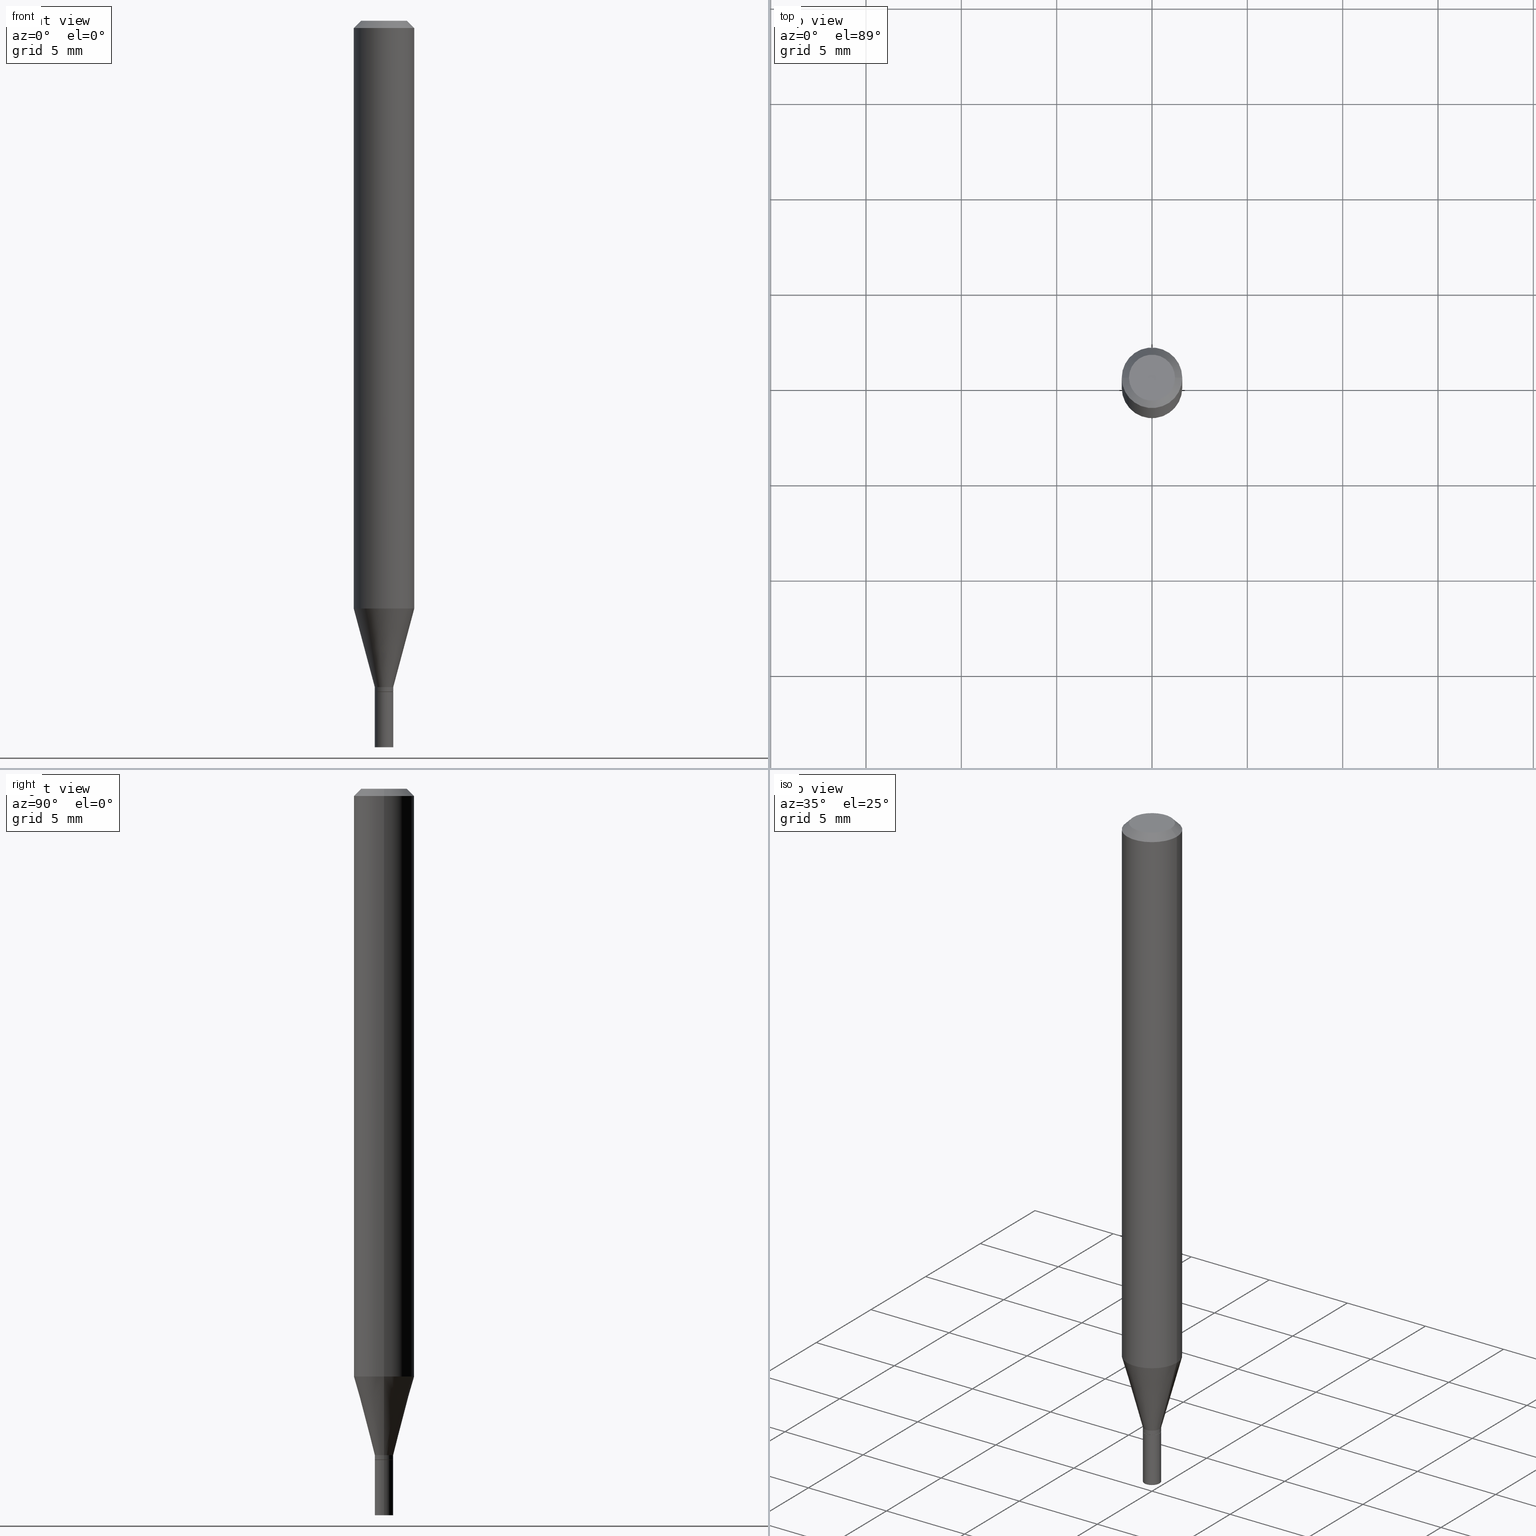
[diagram: canonical four-view strip — front | top / right | iso, engineering-drawing reading convention]
A machine part, canonical four-view strip (front | top / right | iso — engineering-drawing reading convention). The complete STEP part file that produces these views, byte-faithful:
ISO-10303-21;
HEADER;
FILE_DESCRIPTION (( 'STEP AP203' ),
    '1' );
FILE_NAME ('00844.STEP',
    '2024-03-19T22:43:00',
    ( '' ),
    ( '' ),
    'SwSTEP 2.0',
    'SolidWorks 2023',
    '' );
FILE_SCHEMA (( 'CONFIG_CONTROL_DESIGN' ));
ENDSEC;

DATA;
#1 = PERSON_AND_ORGANIZATION ( #120, #69 ) ;
#2 = EDGE_CURVE ( 'NONE', #32, #14, #230, .T. ) ;
#3 = VECTOR ( 'NONE', #204, 39.37007874015748854 ) ;
#4 =( GEOMETRIC_REPRESENTATION_CONTEXT ( 3 ) GLOBAL_UNCERTAINTY_ASSIGNED_CONTEXT ( ( #324 ) ) GLOBAL_UNIT_ASSIGNED_CONTEXT ( ( #253, #68, #297 ) ) REPRESENTATION_CONTEXT ( 'NONE', 'WORKASPACE' ) );
#5 = CIRCLE ( 'NONE', #436, 0.01849999999999999908 ) ;
#6 = DIRECTION ( 'NONE',  ( -2.445468806185136597E-29, 3.491481338843145583E-15, 1.000000000000000000 ) ) ;
#7 = CARTESIAN_POINT ( 'NONE',  ( 0.06250000000000000000, -4.364351673553916694E-16, 3.047610484872459871E-30 ) ) ;
#8 = CIRCLE ( 'NONE', #28, 0.01899999999999999953 ) ;
#9 = DIRECTION ( 'NONE',  ( -2.445468806185136597E-29, 3.491481338843145583E-15, 1.000000000000000000 ) ) ;
#10 = DIMENSIONAL_EXPONENTS ( 1.000000000000000000, 0.000000000000000000, 0.000000000000000000, 0.000000000000000000, 0.000000000000000000, 0.000000000000000000, 0.000000000000000000 ) ;
#11 = DIRECTION ( 'NONE',  ( -2.445468806185136597E-29, 3.491481338843145583E-15, 1.000000000000000000 ) ) ;
#12 = FACE_OUTER_BOUND ( 'NONE', #197, .T. ) ;
#13 = PERSON_AND_ORGANIZATION_ROLE ( 'design_owner' ) ;
#14 = VERTEX_POINT ( 'NONE', #415 ) ;
#15 = EDGE_CURVE ( 'NONE', #52, #159, #207, .T. ) ;
#16 = DIRECTION ( 'NONE',  ( -2.445468806185136877E-29, 3.491481338843145188E-15, 1.000000000000000000 ) ) ;
#17 = ORIENTED_EDGE ( 'NONE', *, *, #279, .F. ) ;
#18 = CARTESIAN_POINT ( 'NONE',  ( 0.01900000000000019382, -4.936954613124209308E-15, -1.376000000000000112 ) ) ;
#19 = AXIS2_PLACEMENT_3D ( 'NONE', #163, #458, #326 ) ;
#20 = ORIENTED_EDGE ( 'NONE', *, *, #131, .F. ) ;
#21 = FACE_OUTER_BOUND ( 'NONE', #429, .T. ) ;
#22 = ORIENTED_EDGE ( 'NONE', *, *, #279, .T. ) ;
#23 = CARTESIAN_POINT ( 'NONE',  ( 0.000000000000000000, 0.000000000000000000, 0.000000000000000000 ) ) ;
#24 = ORIENTED_EDGE ( 'NONE', *, *, #303, .T. ) ;
#25 = CARTESIAN_POINT ( 'NONE',  ( 0.01899999999999992320, -4.970123685843217876E-15, -1.385500000000000398 ) ) ;
#26 = DIRECTION ( 'NONE',  ( 1.000000000000000000, -6.982962677686281699E-15, 0.000000000000000000 ) ) ;
#27 = APPROVAL ( #223, 'UNSPECIFIED' ) ;
#28 = AXIS2_PLACEMENT_3D ( 'NONE', #121, #418, #26 ) ;
#29 = VECTOR ( 'NONE', #272, 39.37007874015748143 ) ;
#30 = VERTEX_POINT ( 'NONE', #452 ) ;
#31 = DIRECTION ( 'NONE',  ( -2.445468806185136597E-29, 3.491481338843145583E-15, 1.000000000000000000 ) ) ;
#32 = VERTEX_POINT ( 'NONE', #166 ) ;
#33 = EDGE_CURVE ( 'NONE', #14, #32, #8, .T. ) ;
#34 = EDGE_LOOP ( 'NONE', ( #167, #164, #383, #312 ) ) ;
#35 = DIRECTION ( 'NONE',  ( -2.445468806185136877E-29, 3.491481338843145188E-15, 1.000000000000000000 ) ) ;
#36 = DIRECTION ( 'NONE',  ( 1.000000000000000000, -6.982962677686265922E-15, 4.876176775795935793E-29 ) ) ;
#37 = VECTOR ( 'NONE', #401, 39.37007874015748143 ) ;
#38 = ORIENTED_EDGE ( 'NONE', *, *, #251, .F. ) ;
#39 = CYLINDRICAL_SURFACE ( 'NONE', #306, 0.01899999999999999953 ) ;
#40 = ADVANCED_FACE ( 'NONE', ( #323 ), #128, .T. ) ;
#41 = DIRECTION ( 'NONE',  ( 1.000000000000000000, -6.982962677686265922E-15, 4.876176775795935793E-29 ) ) ;
#42 = AXIS2_PLACEMENT_3D ( 'NONE', #461, #85, #55 ) ;
#43 = AXIS2_PLACEMENT_3D ( 'NONE', #336, #357, #71 ) ;
#44 = DIRECTION ( 'NONE',  ( 2.445468806185136597E-29, -3.491481338843145583E-15, -1.000000000000000000 ) ) ;
#45 = DIRECTION ( 'NONE',  ( 1.000000000000000000, -6.982962677686262766E-15, 0.000000000000000000 ) ) ;
#46 = EDGE_LOOP ( 'NONE', ( #433, #379 ) ) ;
#47 = DIRECTION ( 'NONE',  ( 1.000000000000000000, -6.982962677686265922E-15, 4.876176775795935793E-29 ) ) ;
#48 = DIRECTION ( 'NONE',  ( 0.7071067811865453523, -7.319954787623248157E-15, -0.7071067811865496822 ) ) ;
#49 = CARTESIAN_POINT ( 'NONE',  ( 0.01849999999999999908, -4.968377945173796372E-15, -1.386000000000000121 ) ) ;
#50 = EDGE_LOOP ( 'NONE', ( #400, #271 ) ) ;
#51 = LINE ( 'NONE', #7, #37 ) ;
#52 = VERTEX_POINT ( 'NONE', #18 ) ;
#53 = ADVANCED_FACE ( 'NONE', ( #343 ), #127, .T. ) ;
#54 = COORDINATED_UNIVERSAL_TIME_OFFSET ( 5, 0, .BEHIND. ) ;
#55 = DIRECTION ( 'NONE',  ( 1.000000000000000000, -6.982962677686254089E-15, 0.000000000000000000 ) ) ;
#56 = CC_DESIGN_DATE_AND_TIME_ASSIGNMENT ( #72, #220, ( #340 ) ) ;
#57 = DIRECTION ( 'NONE',  ( -2.445468806185136597E-29, 3.491481338843145583E-15, 1.000000000000000000 ) ) ;
#58 = ORIENTED_EDGE ( 'NONE', *, *, #385, .F. ) ;
#59 = APPROVAL_PERSON_ORGANIZATION ( #396, #27, #115 ) ;
#60 = EDGE_LOOP ( 'NONE', ( #58, #289, #22, #460 ) ) ;
#61 = CARTESIAN_POINT ( 'NONE',  ( 0.06250000000000000000, -4.888073874380388472E-16, -0.01499999999999999944 ) ) ;
#62 = ORIENTED_EDGE ( 'NONE', *, *, #215, .F. ) ;
#63 = CARTESIAN_POINT ( 'NONE',  ( 0.01899999999999999953, -4.971869426512640168E-15, -1.386000000000000121 ) ) ;
#64 = CYLINDRICAL_SURFACE ( 'NONE', #347, 0.06250000000000000000 ) ;
#65 = LOCAL_TIME ( 18, 43, 0.000000000000000000, #233 ) ;
#66 = LINE ( 'NONE', #181, #99 ) ;
#67 = EDGE_LOOP ( 'NONE', ( #338, #180 ) ) ;
#68 =( NAMED_UNIT ( * ) PLANE_ANGLE_UNIT ( ) SI_UNIT ( $, .RADIAN. ) );
#69 = ORGANIZATION ( 'UNSPECIFIED', 'UNSPECIFIED', '' ) ;
#70 = FACE_OUTER_BOUND ( 'NONE', #100, .T. ) ;
#71 = DIRECTION ( 'NONE',  ( -1.000000000000000000, 6.982962677686266711E-15, 0.000000000000000000 ) ) ;
#72 = DATE_AND_TIME ( #102, #359 ) ;
#73 = ADVANCED_FACE ( 'NONE', ( #243 ), #64, .T. ) ;
#74 = FACE_OUTER_BOUND ( 'NONE', #446, .T. ) ;
#75 = EDGE_CURVE ( 'NONE', #178, #86, #274, .T. ) ;
#76 = AXIS2_PLACEMENT_3D ( 'NONE', #282, #236, #370 ) ;
#77 = LOCAL_TIME ( 18, 43, 0.000000000000000000, #354 ) ;
#78 = PLANE ( 'NONE',  #300 ) ;
#79 = CARTESIAN_POINT ( 'NONE',  ( -0.01899999999999999953, -4.903204452156240515E-15, -1.386000000000000121 ) ) ;
#80 = EDGE_CURVE ( 'NONE', #339, #409, #199, .T. ) ;
#81 = ORIENTED_EDGE ( 'NONE', *, *, #256, .F. ) ;
#82 = DIRECTION ( 'NONE',  ( 1.000000000000000000, -6.982962677686261977E-15, 0.000000000000000000 ) ) ;
#83 = DIRECTION ( 'NONE',  ( -2.445468806185136597E-29, 3.491481338843145583E-15, 1.000000000000000000 ) ) ;
#84 = ORIENTED_EDGE ( 'NONE', *, *, #375, .T. ) ;
#85 = DIRECTION ( 'NONE',  ( -2.445468806185136597E-29, 3.491481338843145583E-15, 1.000000000000000000 ) ) ;
#86 = VERTEX_POINT ( 'NONE', #95 ) ;
#87 = CARTESIAN_POINT ( 'NONE',  ( -2.284261553135908873E-45, 3.261320105837856889E-31, 9.340792028745169707E-17 ) ) ;
#88 = ORIENTED_EDGE ( 'NONE', *, *, #438, .T. ) ;
#89 = DIRECTION ( 'NONE',  ( 1.000000000000000000, -6.982962677686281699E-15, 0.000000000000000000 ) ) ;
#90 = CARTESIAN_POINT ( 'NONE',  ( 0.01900000000000019382, -4.936954613124209308E-15, -1.376000000000000112 ) ) ;
#91 = AXIS2_PLACEMENT_3D ( 'NONE', #154, #307, #364 ) ;
#92 = ORIENTED_EDGE ( 'NONE', *, *, #192, .T. ) ;
#93 = CARTESIAN_POINT ( 'NONE',  ( 1.326762908760729501E-16, 0.01899999999999515965, -1.386000000000000121 ) ) ;
#94 = MANIFOLD_SOLID_BREP ( 'Body-Move/Copy2[2]', #419 ) ;
#95 = CARTESIAN_POINT ( 'NONE',  ( -0.01899999999999992320, -4.702444275172761294E-15, -1.385500000000000398 ) ) ;
#96 = VERTEX_POINT ( 'NONE', #349 ) ;
#97 = EDGE_CURVE ( 'NONE', #409, #130, #124, .T. ) ;
#98 = VECTOR ( 'NONE', #168, 39.37007874015748854 ) ;
#99 = VECTOR ( 'NONE', #177, 39.37007874015748143 ) ;
#100 = EDGE_LOOP ( 'NONE', ( #424, #422, #205, #126 ) ) ;
#101 = CARTESIAN_POINT ( 'NONE',  ( 3.389419765372599969E-29, -4.839193135636600375E-15, -1.386000000000000121 ) ) ;
#102 = CALENDAR_DATE ( 2024, 19, 3 ) ;
#103 = EDGE_CURVE ( 'NONE', #339, #252, #255, .T. ) ;
#104 = PERSON_AND_ORGANIZATION_ROLE ( 'creator' ) ;
#105 = AXIS2_PLACEMENT_3D ( 'NONE', #149, #305, #442 ) ;
#106 = DIRECTION ( 'NONE',  ( -2.438088387897960049E-29, 3.491481338843145188E-15, 1.000000000000000000 ) ) ;
#107 = EDGE_CURVE ( 'NONE', #209, #352, #392, .T. ) ;
#108 = FACE_OUTER_BOUND ( 'NONE', #34, .T. ) ;
#109 = CARTESIAN_POINT ( 'NONE',  ( -0.06250000000000000000, 4.440892098500626162E-16, -3.074334431409316114E-30 ) ) ;
#110 = AXIS2_PLACEMENT_3D ( 'NONE', #317, #450, #283 ) ;
#111 = CC_DESIGN_APPROVAL ( #221, ( #398 ) ) ;
#112 = PERSON_AND_ORGANIZATION_ROLE ( 'classification_officer' ) ;
#113 = ORIENTED_EDGE ( 'NONE', *, *, #371, .T. ) ;
#114 = CARTESIAN_POINT ( 'NONE',  ( 3.389419765372599969E-29, -4.839193135636600375E-15, -1.386000000000000121 ) ) ;
#115 = APPROVAL_ROLE ( '' ) ;
#116 = AXIS2_PLACEMENT_3D ( 'NONE', #93, #414, #206 ) ;
#117 = PLANE ( 'NONE',  #116 ) ;
#118 = EDGE_CURVE ( 'NONE', #352, #209, #212, .T. ) ;
#119 = CARTESIAN_POINT ( 'NONE',  ( 0.000000000000000000, 0.000000000000000000, 0.000000000000000000 ) ) ;
#120 = PERSON ( 'UNSPECIFIED', 'UNSPECIFIED', 'UNSPECIFIED', ('UNSPECIFIED'), ('UNSPECIFIED'), ('UNSPECIFIED') ) ;
#121 = CARTESIAN_POINT ( 'NONE',  ( 3.668203209277704895E-29, -5.237222008264718177E-15, -1.500000000000000222 ) ) ;
#122 = ORIENTED_EDGE ( 'NONE', *, *, #444, .T. ) ;
#123 = DIRECTION ( 'NONE',  ( -2.445468806185136597E-29, 3.491481338843145583E-15, 1.000000000000000000 ) ) ;
#124 = CIRCLE ( 'NONE', #151, 0.06250000000000000000 ) ;
#125 = VECTOR ( 'NONE', #229, 39.37007874015748143 ) ;
#126 = ORIENTED_EDGE ( 'NONE', *, *, #303, .F. ) ;
#127 = CYLINDRICAL_SURFACE ( 'NONE', #455, 0.01899999999999999953 ) ;
#128 = CYLINDRICAL_SURFACE ( 'NONE', #299, 0.01900000000000005851 ) ;
#129 = DESIGN_CONTEXT ( 'detailed design', #225, 'design' ) ;
#130 = VERTEX_POINT ( 'NONE', #61 ) ;
#131 = EDGE_CURVE ( 'NONE', #30, #159, #294, .T. ) ;
#132 = DIRECTION ( 'NONE',  ( -2.445468806185136597E-29, 3.491481338843145583E-15, 1.000000000000000000 ) ) ;
#133 = PRODUCT_RELATED_PRODUCT_CATEGORY ( 'detail', '', ( #363 ) ) ;
#134 = DIRECTION ( 'NONE',  ( 1.000000000000000000, -6.982962677686266711E-15, 4.876176775795935793E-29 ) ) ;
#135 = VECTOR ( 'NONE', #35, 39.37007874015748143 ) ;
#136 = AXIS2_PLACEMENT_3D ( 'NONE', #355, #106, #36 ) ;
#137 = ORIENTED_EDGE ( 'NONE', *, *, #187, .T. ) ;
#138 = LENGTH_MEASURE_WITH_UNIT ( LENGTH_MEASURE( 0.02539999999999999897 ), #179 );
#139 = APPROVAL_STATUS ( 'not_yet_approved' ) ;
#140 = ADVANCED_FACE ( 'NONE', ( #21 ), #161, .T. ) ;
#141 = DIRECTION ( 'NONE',  ( 1.000000000000000000, -6.982962677686258822E-15, 0.000000000000000000 ) ) ;
#142 = PERSON_AND_ORGANIZATION ( #120, #69 ) ;
#143 = APPLICATION_PROTOCOL_DEFINITION ( 'international standard', 'config_control_design', 1994, #176 ) ;
#144 = AXIS2_PLACEMENT_3D ( 'NONE', #87, #31, #316 ) ;
#145 = AXIS2_PLACEMENT_3D ( 'NONE', #114, #407, #231 ) ;
#146 = PRODUCT_DEFINITION_SHAPE ( 'NONE', 'NONE',  #340 ) ;
#147 = DIRECTION ( 'NONE',  ( 1.000000000000000000, -6.982962677686265133E-15, 4.876176775795935232E-29 ) ) ;
#148 = CARTESIAN_POINT ( 'NONE',  ( 0.000000000000000000, 0.000000000000000000, 0.000000000000000000 ) ) ;
#149 = CARTESIAN_POINT ( 'NONE',  ( 3.389419765372599969E-29, -4.839193135636600375E-15, -1.386000000000000121 ) ) ;
#150 = MECHANICAL_CONTEXT ( 'NONE', #176, 'mechanical' ) ;
#151 = AXIS2_PLACEMENT_3D ( 'NONE', #285, #132, #319 ) ;
#152 = AXIS2_PLACEMENT_3D ( 'NONE', #337, #44, #402 ) ;
#153 = APPROVAL_DATE_TIME ( #445, #27 ) ;
#154 = CARTESIAN_POINT ( 'NONE',  ( 3.668203209277705088E-31, -5.237222008264718399E-17, -0.01499999999999999944 ) ) ;
#155 = CARTESIAN_POINT ( 'NONE',  ( -0.04749999999999999362, 3.578768372314211985E-16, 9.340792028744928118E-17 ) ) ;
#156 = SECURITY_CLASSIFICATION_LEVEL ( 'unclassified' ) ;
#157 = ORIENTED_EDGE ( 'NONE', *, *, #187, .F. ) ;
#158 = CARTESIAN_POINT ( 'NONE',  ( 3.388197030969507728E-29, -4.837447394967178871E-15, -1.385500000000000398 ) ) ;
#159 = VERTEX_POINT ( 'NONE', #235 ) ;
#160 = ADVANCED_FACE ( 'NONE', ( #423 ), #417, .F. ) ;
#161 = CONICAL_SURFACE ( 'NONE', #42, 0.01849999999999999908, 0.7853981633974718157 ) ;
#162 = ADVANCED_FACE ( 'NONE', ( #449 ), #117, .F. ) ;
#163 = CARTESIAN_POINT ( 'NONE',  ( 3.389419765372599969E-29, -4.839193135636600375E-15, -1.386000000000000121 ) ) ;
#164 = ORIENTED_EDGE ( 'NONE', *, *, #103, .F. ) ;
#165 = DIRECTION ( 'NONE',  ( 1.000000000000000000, -6.982962677686261977E-15, 0.000000000000000000 ) ) ;
#166 = CARTESIAN_POINT ( 'NONE',  ( -0.01899999999999999953, -4.903204452156240515E-15, -1.500000000000000222 ) ) ;
#167 = ORIENTED_EDGE ( 'NONE', *, *, #403, .F. ) ;
#168 = DIRECTION ( 'NONE',  ( -0.2588190451025212391, 5.211531920934549464E-15, 0.9659258262890679791 ) ) ;
#169 = ORIENTED_EDGE ( 'NONE', *, *, #330, .T. ) ;
#170 = CARTESIAN_POINT ( 'NONE',  ( 0.01900000000000005851, -1.326762908760394481E-16, 9.264735874012305402E-31 ) ) ;
#171 = DIRECTION ( 'NONE',  ( 1.000000000000000000, -6.982962677686265133E-15, 4.876176775795935232E-29 ) ) ;
#172 = CIRCLE ( 'NONE', #335, 0.06250000000000000000 ) ;
#173 = CARTESIAN_POINT ( 'NONE',  ( 3.389419765372599969E-29, -4.839193135636600375E-15, -1.386000000000000121 ) ) ;
#174 = CC_DESIGN_PERSON_AND_ORGANIZATION_ASSIGNMENT ( #190, #195, ( #193 ) ) ;
#175 = EDGE_LOOP ( 'NONE', ( #234, #84, #17, #38 ) ) ;
#176 = APPLICATION_CONTEXT ( 'configuration controlled 3d designs of mechanical parts and assemblies' ) ;
#177 = DIRECTION ( 'NONE',  ( -0.7071067811865642261, 7.493145998870414114E-15, 0.7071067811865309194 ) ) ;
#178 = VERTEX_POINT ( 'NONE', #25 ) ;
#179 =( LENGTH_UNIT ( ) NAMED_UNIT ( * ) SI_UNIT ( $, .METRE. ) );
#180 = ORIENTED_EDGE ( 'NONE', *, *, #2, .F. ) ;
#181 = CARTESIAN_POINT ( 'NONE',  ( -0.01849999999999999908, -4.707742729520982118E-15, -1.386000000000000121 ) ) ;
#182 = DIRECTION ( 'NONE',  ( 1.000000000000000000, -6.982962677686254089E-15, 0.000000000000000000 ) ) ;
#183 = LINE ( 'NONE', #395, #430 ) ;
#184 = ADVANCED_FACE ( 'NONE', ( #381 ), #185, .T. ) ;
#185 = CONICAL_SURFACE ( 'NONE', #313, 0.01900000000000019382, 0.2617993877991499629 ) ;
#186 = CC_DESIGN_APPROVAL ( #27, ( #340 ) ) ;
#187 = EDGE_CURVE ( 'NONE', #244, #30, #451, .T. ) ;
#188 = CARTESIAN_POINT ( 'NONE',  ( 0.000000000000000000, 0.000000000000000000, 0.000000000000000000 ) ) ;
#189 = CYLINDRICAL_SURFACE ( 'NONE', #443, 0.06250000000000000000 ) ;
#190 = PERSON_AND_ORGANIZATION ( #120, #69 ) ;
#191 = CARTESIAN_POINT ( 'NONE',  ( 0.04749999999999999362, -4.035134999187576651E-16, 9.340792028745427319E-17 ) ) ;
#192 = EDGE_CURVE ( 'NONE', #52, #244, #358, .T. ) ;
#193 = PRODUCT_DEFINITION_FORMATION_WITH_SPECIFIED_SOURCE ( 'ANY', '', #363, .NOT_KNOWN. ) ;
#194 = DIRECTION ( 'NONE',  ( 0.000000000000000000, 0.000000000000000000, 1.000000000000000000 ) ) ;
#195 = PERSON_AND_ORGANIZATION_ROLE ( 'design_supplier' ) ;
#196 = CARTESIAN_POINT ( 'NONE',  ( 0.01899999999999999953, -1.326762908760390537E-16, 9.264735874012277376E-31 ) ) ;
#197 = EDGE_LOOP ( 'NONE', ( #292, #382, #122, #346 ) ) ;
#198 = SHAPE_DEFINITION_REPRESENTATION ( #146, #245 ) ;
#199 = LINE ( 'NONE', #290, #201 ) ;
#200 = ORIENTED_EDGE ( 'NONE', *, *, #97, .F. ) ;
#201 = VECTOR ( 'NONE', #210, 39.37007874015748143 ) ;
#202 = CONICAL_SURFACE ( 'NONE', #275, 0.01900000000000019382, 0.2617993877991499629 ) ;
#203 = DIRECTION ( 'NONE',  ( -2.445468806185136597E-29, 3.491481338843145583E-15, 1.000000000000000000 ) ) ;
#204 = DIRECTION ( 'NONE',  ( 0.2588190451025212391, 1.565188264969622362E-15, 0.9659258262890679791 ) ) ;
#205 = ORIENTED_EDGE ( 'NONE', *, *, #107, .F. ) ;
#206 = DIRECTION ( 'NONE',  ( -1.000000000000000000, 6.982962677686265922E-15, -4.876176775795935793E-29 ) ) ;
#207 = LINE ( 'NONE', #90, #3 ) ;
#208 = CARTESIAN_POINT ( 'NONE',  ( 3.364965077310747863E-29, -4.804278322248168726E-15, -1.376000000000000112 ) ) ;
#209 = VERTEX_POINT ( 'NONE', #63 ) ;
#210 = DIRECTION ( 'NONE',  ( -0.7071067811865453523, 2.468850131082234184E-15, -0.7071067811865496822 ) ) ;
#211 = AXIS2_PLACEMENT_3D ( 'NONE', #341, #57, #342 ) ;
#212 = CIRCLE ( 'NONE', #19, 0.01899999999999999953 ) ;
#213 = CIRCLE ( 'NONE', #387, 0.04749999999999999362 ) ;
#214 = PERSON_AND_ORGANIZATION ( #120, #69 ) ;
#215 = EDGE_CURVE ( 'NONE', #178, #52, #344, .T. ) ;
#216 = EDGE_CURVE ( 'NONE', #32, #352, #435, .T. ) ;
#217 = CLOSED_SHELL ( 'NONE', ( #247, #463, #53, #162 ) ) ;
#218 = LOCAL_TIME ( 18, 43, 0.000000000000000000, #54 ) ;
#219 = EDGE_CURVE ( 'NONE', #244, #52, #262, .T. ) ;
#220 = DATE_TIME_ROLE ( 'creation_date' ) ;
#221 = APPROVAL ( #372, 'UNSPECIFIED' ) ;
#222 = CYLINDRICAL_SURFACE ( 'NONE', #411, 0.01900000000000005851 ) ;
#223 = APPROVAL_STATUS ( 'not_yet_approved' ) ;
#224 = CC_DESIGN_APPROVAL ( #441, ( #193 ) ) ;
#225 = APPLICATION_CONTEXT ( 'configuration controlled 3d designs of mechanical parts and assemblies' ) ;
#226 = PERSON_AND_ORGANIZATION ( #120, #69 ) ;
#227 = DIRECTION ( 'NONE',  ( 1.000000000000000000, -6.982962677686267499E-15, 4.884662768193073002E-29 ) ) ;
#228 = DATE_TIME_ROLE ( 'classification_date' ) ;
#229 = DIRECTION ( 'NONE',  ( -2.445468806185136877E-29, 3.491481338843145188E-15, 1.000000000000000000 ) ) ;
#230 = CIRCLE ( 'NONE', #110, 0.01899999999999999953 ) ;
#231 = DIRECTION ( 'NONE',  ( 1.000000000000000000, -6.982962677686254089E-15, 0.000000000000000000 ) ) ;
#232 = CARTESIAN_POINT ( 'NONE',  ( 0.06250000000000000000, -4.811533449433679005E-16, -0.01499999999999999944 ) ) ;
#233 = COORDINATED_UNIVERSAL_TIME_OFFSET ( 5, 0, .BEHIND. ) ;
#234 = ORIENTED_EDGE ( 'NONE', *, *, #325, .T. ) ;
#235 = CARTESIAN_POINT ( 'NONE',  ( 0.06250000000000000000, -4.673891709468070691E-15, -1.213655789870754953 ) ) ;
#236 = DIRECTION ( 'NONE',  ( 2.438088387897960049E-29, -3.491481338843145188E-15, -1.000000000000000000 ) ) ;
#237 = ORIENTED_EDGE ( 'NONE', *, *, #219, .F. ) ;
#238 = ORIENTED_EDGE ( 'NONE', *, *, #2, .T. ) ;
#239 = AXIS2_PLACEMENT_3D ( 'NONE', #250, #390, #434 ) ;
#240 = CARTESIAN_POINT ( 'NONE',  ( 3.388197030969507728E-29, -4.837447394967178871E-15, -1.385500000000000398 ) ) ;
#241 = ORIENTED_EDGE ( 'NONE', *, *, #325, .F. ) ;
#242 = ORIENTED_EDGE ( 'NONE', *, *, #444, .F. ) ;
#243 = FACE_OUTER_BOUND ( 'NONE', #376, .T. ) ;
#244 = VERTEX_POINT ( 'NONE', #393 ) ;
#245 = ADVANCED_BREP_SHAPE_REPRESENTATION ( '00844', ( #405, #94, #348 ), #4 ) ;
#246 = DIRECTION ( 'NONE',  ( -2.445468806185136597E-29, 3.491481338843145583E-15, 1.000000000000000000 ) ) ;
#247 = ADVANCED_FACE ( 'NONE', ( #70 ), #39, .T. ) ;
#248 = CC_DESIGN_PERSON_AND_ORGANIZATION_ASSIGNMENT ( #142, #112, ( #398 ) ) ;
#249 = AXIS2_PLACEMENT_3D ( 'NONE', #240, #412, #322 ) ;
#250 = CARTESIAN_POINT ( 'NONE',  ( 3.364965077310747863E-29, -4.804278322248168726E-15, -1.376000000000000112 ) ) ;
#251 = EDGE_CURVE ( 'NONE', #159, #130, #51, .T. ) ;
#252 = VERTEX_POINT ( 'NONE', #191 ) ;
#253 =( CONVERSION_BASED_UNIT ( 'INCH', #138 ) LENGTH_UNIT ( ) NAMED_UNIT ( #10 ) );
#254 = PERSON_AND_ORGANIZATION ( #120, #69 ) ;
#255 = CIRCLE ( 'NONE', #144, 0.04749999999999999362 ) ;
#256 = EDGE_CURVE ( 'NONE', #96, #284, #295, .T. ) ;
#257 = APPROVAL_DATE_TIME ( #413, #221 ) ;
#258 = CARTESIAN_POINT ( 'NONE',  ( -0.01900000000000005851, 1.350031197944194510E-16, -9.345976671484349768E-31 ) ) ;
#259 = ORIENTED_EDGE ( 'NONE', *, *, #309, .T. ) ;
#260 = DIRECTION ( 'NONE',  ( -2.445468806185136597E-29, 3.491481338843145583E-15, 1.000000000000000000 ) ) ;
#261 = CARTESIAN_POINT ( 'NONE',  ( -0.06250000000000000000, -1.700825171247600434E-15, -0.01499999999999999944 ) ) ;
#262 = CIRCLE ( 'NONE', #239, 0.01900000000000019382 ) ;
#263 = APPROVAL_PERSON_ORGANIZATION ( #281, #221, #276 ) ;
#264 = CARTESIAN_POINT ( 'NONE',  ( 2.967957375574913989E-29, -4.237456542112679022E-15, -1.213655789870754953 ) ) ;
#265 = DIRECTION ( 'NONE',  ( -2.445468806185136597E-29, 3.491481338843145583E-15, 1.000000000000000000 ) ) ;
#266 = FACE_OUTER_BOUND ( 'NONE', #60, .T. ) ;
#267 = ORIENTED_EDGE ( 'NONE', *, *, #15, .T. ) ;
#268 = ADVANCED_FACE ( 'NONE', ( #334 ), #202, .T. ) ;
#269 = CALENDAR_DATE ( 2024, 19, 3 ) ;
#270 = LINE ( 'NONE', #109, #125 ) ;
#271 = ORIENTED_EDGE ( 'NONE', *, *, #118, .T. ) ;
#272 = DIRECTION ( 'NONE',  ( -2.445468806185136877E-29, 3.491481338843145188E-15, 1.000000000000000000 ) ) ;
#273 = ORIENTED_EDGE ( 'NONE', *, *, #215, .T. ) ;
#274 = CIRCLE ( 'NONE', #249, 0.01899999999999992320 ) ;
#275 = AXIS2_PLACEMENT_3D ( 'NONE', #278, #265, #82 ) ;
#276 = APPROVAL_ROLE ( '' ) ;
#277 = CIRCLE ( 'NONE', #353, 0.01899999999999992320 ) ;
#278 = CARTESIAN_POINT ( 'NONE',  ( 3.364965077310747863E-29, -4.804278322248168726E-15, -1.376000000000000112 ) ) ;
#279 = EDGE_CURVE ( 'NONE', #130, #409, #366, .T. ) ;
#280 = ORIENTED_EDGE ( 'NONE', *, *, #75, .F. ) ;
#281 = PERSON_AND_ORGANIZATION ( #120, #69 ) ;
#282 = CARTESIAN_POINT ( 'NONE',  ( 3.316907271900976096E-16, 0.04749999999999999362, -1.191414034513235726E-16 ) ) ;
#283 = DIRECTION ( 'NONE',  ( 1.000000000000000000, -6.982962677686281699E-15, 0.000000000000000000 ) ) ;
#284 = VERTEX_POINT ( 'NONE', #49 ) ;
#285 = CARTESIAN_POINT ( 'NONE',  ( 3.668203209277705088E-31, -5.237222008264718399E-17, -0.01499999999999999944 ) ) ;
#286 = ORIENTED_EDGE ( 'NONE', *, *, #219, .T. ) ;
#287 = CONICAL_SURFACE ( 'NONE', #43, 0.06250000000000000000, 0.7853981633974452814 ) ;
#288 = DIRECTION ( 'NONE',  ( 1.000000000000000000, -6.982962677686261977E-15, 0.000000000000000000 ) ) ;
#289 = ORIENTED_EDGE ( 'NONE', *, *, #403, .T. ) ;
#290 = CARTESIAN_POINT ( 'NONE',  ( -0.06250000000000000000, 3.840629472727444916E-16, -0.01499999999999999944 ) ) ;
#291 = EDGE_LOOP ( 'NONE', ( #92, #137, #241, #380 ) ) ;
#292 = ORIENTED_EDGE ( 'NONE', *, *, #438, .F. ) ;
#293 = ADVANCED_FACE ( 'NONE', ( #12 ), #331, .T. ) ;
#294 = CIRCLE ( 'NONE', #211, 0.06250000000000000000 ) ;
#295 = CIRCLE ( 'NONE', #105, 0.01849999999999999908 ) ;
#296 = DIRECTION ( 'NONE',  ( -2.445468806185136877E-29, 3.491481338843145188E-15, 1.000000000000000000 ) ) ;
#297 =( NAMED_UNIT ( * ) SI_UNIT ( $, .STERADIAN. ) SOLID_ANGLE_UNIT ( ) );
#298 = DIRECTION ( 'NONE',  ( -2.445468806185136597E-29, 3.491481338843145583E-15, 1.000000000000000000 ) ) ;
#299 = AXIS2_PLACEMENT_3D ( 'NONE', #345, #459, #171 ) ;
#300 = AXIS2_PLACEMENT_3D ( 'NONE', #101, #329, #41 ) ;
#301 = COORDINATED_UNIVERSAL_TIME_OFFSET ( 5, 0, .BEHIND. ) ;
#302 = LINE ( 'NONE', #258, #29 ) ;
#303 = EDGE_CURVE ( 'NONE', #14, #209, #367, .T. ) ;
#304 = DIRECTION ( 'NONE',  ( 1.000000000000000000, 0.000000000000000000, 0.000000000000000000 ) ) ;
#305 = DIRECTION ( 'NONE',  ( -2.445468806185136597E-29, 3.491481338843145583E-15, 1.000000000000000000 ) ) ;
#306 = AXIS2_PLACEMENT_3D ( 'NONE', #333, #9, #47 ) ;
#307 = DIRECTION ( 'NONE',  ( -2.445468806185136597E-29, 3.491481338843145583E-15, 1.000000000000000000 ) ) ;
#308 = CARTESIAN_POINT ( 'NONE',  ( 3.389419765372599969E-29, -4.839193135636600375E-15, -1.386000000000000121 ) ) ;
#309 = EDGE_CURVE ( 'NONE', #86, #178, #277, .T. ) ;
#310 = ADVANCED_FACE ( 'NONE', ( #108 ), #287, .T. ) ;
#311 = COORDINATED_UNIVERSAL_TIME_OFFSET ( 5, 0, .BEHIND. ) ;
#312 = ORIENTED_EDGE ( 'NONE', *, *, #97, .T. ) ;
#313 = AXIS2_PLACEMENT_3D ( 'NONE', #208, #373, #165 ) ;
#314 = CONICAL_SURFACE ( 'NONE', #152, 0.06250000000000000000, 0.7853981633974452814 ) ;
#315 = CC_DESIGN_PERSON_AND_ORGANIZATION_ASSIGNMENT ( #1, #427, ( #340 ) ) ;
#316 = DIRECTION ( 'NONE',  ( 1.000000000000000000, -6.982962677686267499E-15, 4.884662768193073002E-29 ) ) ;
#317 = CARTESIAN_POINT ( 'NONE',  ( 3.668203209277704895E-29, -5.237222008264718177E-15, -1.500000000000000222 ) ) ;
#318 = CARTESIAN_POINT ( 'NONE',  ( -0.01900000000000019382, -4.669275202453748782E-15, -1.376000000000000112 ) ) ;
#319 = DIRECTION ( 'NONE',  ( 1.000000000000000000, -6.982962677686266711E-15, 0.000000000000000000 ) ) ;
#320 = ORIENTED_EDGE ( 'NONE', *, *, #118, .F. ) ;
#321 = ORIENTED_EDGE ( 'NONE', *, *, #375, .F. ) ;
#322 = DIRECTION ( 'NONE',  ( 1.000000000000000000, -6.982962677686258822E-15, 0.000000000000000000 ) ) ;
#323 = FACE_OUTER_BOUND ( 'NONE', #457, .T. ) ;
#324 = UNCERTAINTY_MEASURE_WITH_UNIT (LENGTH_MEASURE( 1.000000000000000082E-05 ), #253, 'distance_accuracy_value', 'NONE');
#325 = EDGE_CURVE ( 'NONE', #159, #30, #172, .T. ) ;
#326 = DIRECTION ( 'NONE',  ( 1.000000000000000000, -6.982962677686281699E-15, 0.000000000000000000 ) ) ;
#327 = ORIENTED_EDGE ( 'NONE', *, *, #371, .F. ) ;
#328 = ADVANCED_FACE ( 'NONE', ( #397 ), #189, .T. ) ;
#329 = DIRECTION ( 'NONE',  ( -2.438088387897960049E-29, 3.491481338843145188E-15, 1.000000000000000000 ) ) ;
#330 = EDGE_CURVE ( 'NONE', #284, #96, #5, .T. ) ;
#331 = CONICAL_SURFACE ( 'NONE', #145, 0.01849999999999999908, 0.7853981633974718157 ) ;
#332 = DIRECTION ( 'NONE',  ( 0.7071067811865642261, -2.468850131082431399E-15, 0.7071067811865309194 ) ) ;
#333 = CARTESIAN_POINT ( 'NONE',  ( 0.000000000000000000, 0.000000000000000000, 0.000000000000000000 ) ) ;
#334 = FACE_OUTER_BOUND ( 'NONE', #291, .T. ) ;
#335 = AXIS2_PLACEMENT_3D ( 'NONE', #264, #260, #45 ) ;
#336 = CARTESIAN_POINT ( 'NONE',  ( 3.668203209277705088E-31, -5.237222008264718399E-17, -0.01499999999999999944 ) ) ;
#337 = CARTESIAN_POINT ( 'NONE',  ( 3.668203209277705088E-31, -5.237222008264718399E-17, -0.01499999999999999944 ) ) ;
#338 = ORIENTED_EDGE ( 'NONE', *, *, #33, .F. ) ;
#339 = VERTEX_POINT ( 'NONE', #155 ) ;
#340 = PRODUCT_DEFINITION ( 'UNKNOWN', '', #193, #129 ) ;
#341 = CARTESIAN_POINT ( 'NONE',  ( 2.967957375574913989E-29, -4.237456542112679022E-15, -1.213655789870754953 ) ) ;
#342 = DIRECTION ( 'NONE',  ( 1.000000000000000000, -6.982962677686262766E-15, 0.000000000000000000 ) ) ;
#343 = FACE_OUTER_BOUND ( 'NONE', #462, .T. ) ;
#344 = LINE ( 'NONE', #170, #135 ) ;
#345 = CARTESIAN_POINT ( 'NONE',  ( 0.000000000000000000, 0.000000000000000000, 0.000000000000000000 ) ) ;
#346 = ORIENTED_EDGE ( 'NONE', *, *, #309, .F. ) ;
#347 = AXIS2_PLACEMENT_3D ( 'NONE', #23, #384, #377 ) ;
#348 = AXIS2_PLACEMENT_3D ( 'NONE', #408, #194, #304 ) ;
#349 = CARTESIAN_POINT ( 'NONE',  ( -0.01849999999999999908, -4.705093502346870917E-15, -1.386000000000000121 ) ) ;
#350 = ADVANCED_FACE ( 'NONE', ( #266 ), #314, .T. ) ;
#351 = ORIENTED_EDGE ( 'NONE', *, *, #75, .T. ) ;
#352 = VERTEX_POINT ( 'NONE', #79 ) ;
#353 = AXIS2_PLACEMENT_3D ( 'NONE', #158, #298, #141 ) ;
#354 = COORDINATED_UNIVERSAL_TIME_OFFSET ( 5, 0, .BEHIND. ) ;
#355 = CARTESIAN_POINT ( 'NONE',  ( 3.584916967085606921E-29, -5.356492647442320375E-15, -1.500000000000000222 ) ) ;
#356 = DIRECTION ( 'NONE',  ( -2.445468806185136597E-29, 3.491481338843145583E-15, 1.000000000000000000 ) ) ;
#357 = DIRECTION ( 'NONE',  ( 2.445468806185136597E-29, -3.491481338843145583E-15, -1.000000000000000000 ) ) ;
#358 = CIRCLE ( 'NONE', #428, 0.01900000000000019382 ) ;
#359 = LOCAL_TIME ( 18, 43, 0.000000000000000000, #301 ) ;
#360 = ORIENTED_EDGE ( 'NONE', *, *, #330, .F. ) ;
#361 = CC_DESIGN_PERSON_AND_ORGANIZATION_ASSIGNMENT ( #226, #13, ( #363 ) ) ;
#362 = LINE ( 'NONE', #232, #421 ) ;
#363 = PRODUCT ( '00844', '00844', '', ( #150 ) ) ;
#364 = DIRECTION ( 'NONE',  ( 1.000000000000000000, -6.982962677686266711E-15, 0.000000000000000000 ) ) ;
#365 = CARTESIAN_POINT ( 'NONE',  ( -2.284261553135908873E-45, 3.261320105837856889E-31, 9.340792028745169707E-17 ) ) ;
#366 = CIRCLE ( 'NONE', #91, 0.06250000000000000000 ) ;
#367 = LINE ( 'NONE', #196, #448 ) ;
#368 = EDGE_LOOP ( 'NONE', ( #157, #286, #267, #20 ) ) ;
#369 = DATE_AND_TIME ( #269, #466 ) ;
#370 = DIRECTION ( 'NONE',  ( -1.000000000000000000, 6.982962677686265922E-15, -4.876176775795935793E-29 ) ) ;
#371 = EDGE_CURVE ( 'NONE', #86, #244, #302, .T. ) ;
#372 = APPROVAL_STATUS ( 'not_yet_approved' ) ;
#373 = DIRECTION ( 'NONE',  ( -2.445468806185136597E-29, 3.491481338843145583E-15, 1.000000000000000000 ) ) ;
#374 = CC_DESIGN_SECURITY_CLASSIFICATION ( #398, ( #193 ) ) ;
#375 = EDGE_CURVE ( 'NONE', #30, #409, #270, .T. ) ;
#376 = EDGE_LOOP ( 'NONE', ( #321, #453, #426, #200 ) ) ;
#377 = DIRECTION ( 'NONE',  ( 1.000000000000000000, -6.982962677686266711E-15, 4.876176775795935793E-29 ) ) ;
#378 = CALENDAR_DATE ( 2024, 19, 3 ) ;
#379 = ORIENTED_EDGE ( 'NONE', *, *, #385, .T. ) ;
#380 = ORIENTED_EDGE ( 'NONE', *, *, #15, .F. ) ;
#381 = FACE_OUTER_BOUND ( 'NONE', #368, .T. ) ;
#382 = ORIENTED_EDGE ( 'NONE', *, *, #256, .T. ) ;
#383 = ORIENTED_EDGE ( 'NONE', *, *, #80, .T. ) ;
#384 = DIRECTION ( 'NONE',  ( -2.445468806185136597E-29, 3.491481338843145583E-15, 1.000000000000000000 ) ) ;
#385 = EDGE_CURVE ( 'NONE', #252, #339, #213, .T. ) ;
#386 = EDGE_LOOP ( 'NONE', ( #360, #81 ) ) ;
#387 = AXIS2_PLACEMENT_3D ( 'NONE', #365, #83, #227 ) ;
#388 = CC_DESIGN_DATE_AND_TIME_ASSIGNMENT ( #369, #228, ( #398 ) ) ;
#389 = DATE_AND_TIME ( #391, #77 ) ;
#390 = DIRECTION ( 'NONE',  ( -2.445468806185136597E-29, 3.491481338843145583E-15, 1.000000000000000000 ) ) ;
#391 = CALENDAR_DATE ( 2024, 19, 3 ) ;
#392 = CIRCLE ( 'NONE', #410, 0.01899999999999999953 ) ;
#393 = CARTESIAN_POINT ( 'NONE',  ( -0.01900000000000019382, -4.231321267358182988E-15, -1.376000000000000112 ) ) ;
#394 = PLANE ( 'NONE',  #136 ) ;
#395 = CARTESIAN_POINT ( 'NONE',  ( 0.01849999999999999908, -4.968377945173796372E-15, -1.386000000000000121 ) ) ;
#396 = PERSON_AND_ORGANIZATION ( #120, #69 ) ;
#397 = FACE_OUTER_BOUND ( 'NONE', #175, .T. ) ;
#398 = SECURITY_CLASSIFICATION ( '', '', #156 ) ;
#399 = FACE_OUTER_BOUND ( 'NONE', #386, .T. ) ;
#400 = ORIENTED_EDGE ( 'NONE', *, *, #107, .T. ) ;
#401 = DIRECTION ( 'NONE',  ( -2.445468806185136877E-29, 3.491481338843145188E-15, 1.000000000000000000 ) ) ;
#402 = DIRECTION ( 'NONE',  ( -1.000000000000000000, 6.982962677686266711E-15, 0.000000000000000000 ) ) ;
#403 = EDGE_CURVE ( 'NONE', #252, #130, #362, .T. ) ;
#404 = ADVANCED_FACE ( 'NONE', ( #74 ), #222, .T. ) ;
#405 = MANIFOLD_SOLID_BREP ( 'Body-Move/Copy2[1]', #217 ) ;
#406 = APPLICATION_PROTOCOL_DEFINITION ( 'international standard', 'config_control_design', 1994, #225 ) ;
#407 = DIRECTION ( 'NONE',  ( -2.445468806185136597E-29, 3.491481338843145583E-15, 1.000000000000000000 ) ) ;
#408 = CARTESIAN_POINT ( 'NONE',  ( 0.000000000000000000, 0.000000000000000000, 0.000000000000000000 ) ) ;
#409 = VERTEX_POINT ( 'NONE', #261 ) ;
#410 = AXIS2_PLACEMENT_3D ( 'NONE', #173, #203, #89 ) ;
#411 = AXIS2_PLACEMENT_3D ( 'NONE', #188, #6, #147 ) ;
#412 = DIRECTION ( 'NONE',  ( -2.445468806185136597E-29, 3.491481338843145583E-15, 1.000000000000000000 ) ) ;
#413 = DATE_AND_TIME ( #437, #218 ) ;
#414 = DIRECTION ( 'NONE',  ( 2.438088387897960049E-29, -3.491481338843145188E-15, -1.000000000000000000 ) ) ;
#415 = CARTESIAN_POINT ( 'NONE',  ( 0.01899999999999999953, -5.369898299140757970E-15, -1.500000000000000222 ) ) ;
#416 = ORIENTED_EDGE ( 'NONE', *, *, #192, .F. ) ;
#417 = PLANE ( 'NONE',  #76 ) ;
#418 = DIRECTION ( 'NONE',  ( -2.445468806185136597E-29, 3.491481338843145583E-15, 1.000000000000000000 ) ) ;
#419 = CLOSED_SHELL ( 'NONE', ( #404, #140, #350, #328, #268, #184, #73, #310, #160, #431, #293, #40 ) ) ;
#420 = CC_DESIGN_PERSON_AND_ORGANIZATION_ASSIGNMENT ( #254, #104, ( #193 ) ) ;
#421 = VECTOR ( 'NONE', #48, 39.37007874015748143 ) ;
#422 = ORIENTED_EDGE ( 'NONE', *, *, #216, .T. ) ;
#423 = FACE_OUTER_BOUND ( 'NONE', #46, .T. ) ;
#424 = ORIENTED_EDGE ( 'NONE', *, *, #33, .T. ) ;
#425 = DIRECTION ( 'NONE',  ( 1.000000000000000000, -6.982962677686265922E-15, 4.876176775795935793E-29 ) ) ;
#426 = ORIENTED_EDGE ( 'NONE', *, *, #251, .T. ) ;
#427 = PERSON_AND_ORGANIZATION_ROLE ( 'creator' ) ;
#428 = AXIS2_PLACEMENT_3D ( 'NONE', #454, #123, #288 ) ;
#429 = EDGE_LOOP ( 'NONE', ( #169, #88, #280, #242 ) ) ;
#430 = VECTOR ( 'NONE', #332, 39.37007874015748143 ) ;
#431 = ADVANCED_FACE ( 'NONE', ( #399 ), #78, .F. ) ;
#432 = APPROVAL_DATE_TIME ( #389, #441 ) ;
#433 = ORIENTED_EDGE ( 'NONE', *, *, #103, .T. ) ;
#434 = DIRECTION ( 'NONE',  ( 1.000000000000000000, -6.982962677686261977E-15, 0.000000000000000000 ) ) ;
#435 = LINE ( 'NONE', #440, #465 ) ;
#436 = AXIS2_PLACEMENT_3D ( 'NONE', #308, #11, #182 ) ;
#437 = CALENDAR_DATE ( 2024, 19, 3 ) ;
#438 = EDGE_CURVE ( 'NONE', #96, #86, #66, .T. ) ;
#439 = FACE_OUTER_BOUND ( 'NONE', #67, .T. ) ;
#440 = CARTESIAN_POINT ( 'NONE',  ( -0.01899999999999999953, 1.350031197944190320E-16, -9.345976671484319990E-31 ) ) ;
#441 = APPROVAL ( #139, 'UNSPECIFIED' ) ;
#442 = DIRECTION ( 'NONE',  ( 1.000000000000000000, -6.982962677686254089E-15, 0.000000000000000000 ) ) ;
#443 = AXIS2_PLACEMENT_3D ( 'NONE', #148, #356, #134 ) ;
#444 = EDGE_CURVE ( 'NONE', #284, #178, #183, .T. ) ;
#445 = DATE_AND_TIME ( #378, #65 ) ;
#446 = EDGE_LOOP ( 'NONE', ( #351, #113, #416, #62 ) ) ;
#447 = ORIENTED_EDGE ( 'NONE', *, *, #216, .F. ) ;
#448 = VECTOR ( 'NONE', #16, 39.37007874015748143 ) ;
#449 = FACE_OUTER_BOUND ( 'NONE', #50, .T. ) ;
#450 = DIRECTION ( 'NONE',  ( -2.445468806185136597E-29, 3.491481338843145583E-15, 1.000000000000000000 ) ) ;
#451 = LINE ( 'NONE', #318, #98 ) ;
#452 = CARTESIAN_POINT ( 'NONE',  ( -0.06250000000000000000, -3.793367332262617194E-15, -1.213655789870754953 ) ) ;
#453 = ORIENTED_EDGE ( 'NONE', *, *, #131, .T. ) ;
#454 = CARTESIAN_POINT ( 'NONE',  ( 3.364965077310747863E-29, -4.804278322248168726E-15, -1.376000000000000112 ) ) ;
#455 = AXIS2_PLACEMENT_3D ( 'NONE', #119, #246, #425 ) ;
#456 = APPROVAL_PERSON_ORGANIZATION ( #214, #441, #464 ) ;
#457 = EDGE_LOOP ( 'NONE', ( #327, #259, #273, #237 ) ) ;
#458 = DIRECTION ( 'NONE',  ( -2.445468806185136597E-29, 3.491481338843145583E-15, 1.000000000000000000 ) ) ;
#459 = DIRECTION ( 'NONE',  ( -2.445468806185136597E-29, 3.491481338843145583E-15, 1.000000000000000000 ) ) ;
#460 = ORIENTED_EDGE ( 'NONE', *, *, #80, .F. ) ;
#461 = CARTESIAN_POINT ( 'NONE',  ( 3.389419765372599969E-29, -4.839193135636600375E-15, -1.386000000000000121 ) ) ;
#462 = EDGE_LOOP ( 'NONE', ( #447, #238, #24, #320 ) ) ;
#463 = ADVANCED_FACE ( 'NONE', ( #439 ), #394, .F. ) ;
#464 = APPROVAL_ROLE ( '' ) ;
#465 = VECTOR ( 'NONE', #296, 39.37007874015748143 ) ;
#466 = LOCAL_TIME ( 18, 43, 0.000000000000000000, #311 ) ;
ENDSEC;
END-ISO-10303-21;
